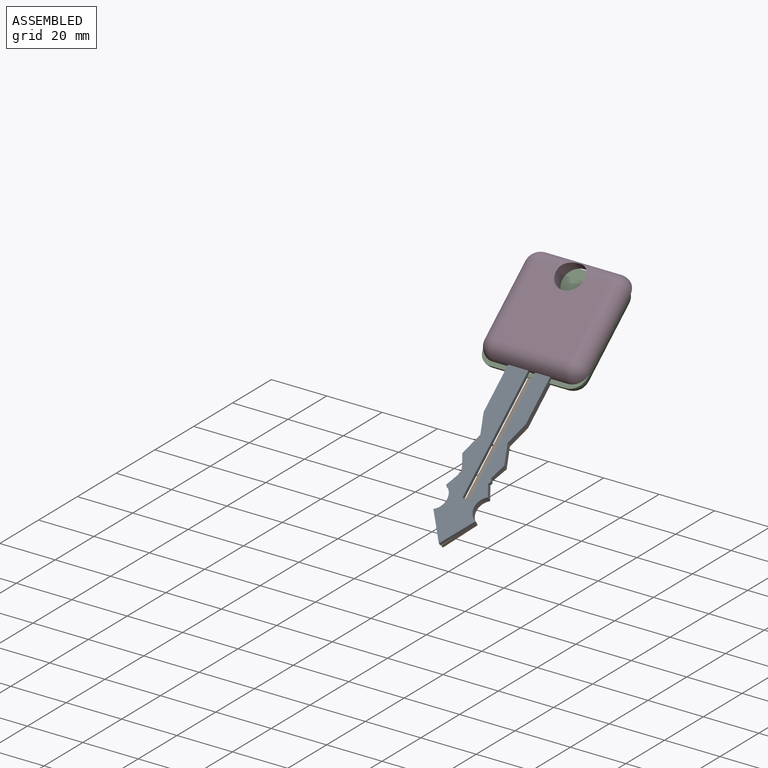
[diagram: assembled view]
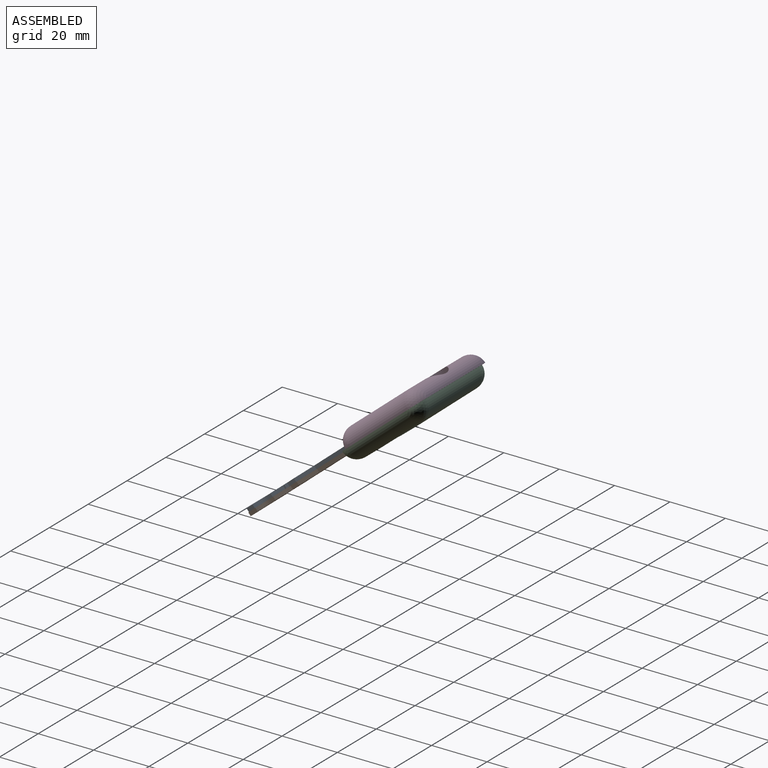
[diagram: assembled view, second angle]
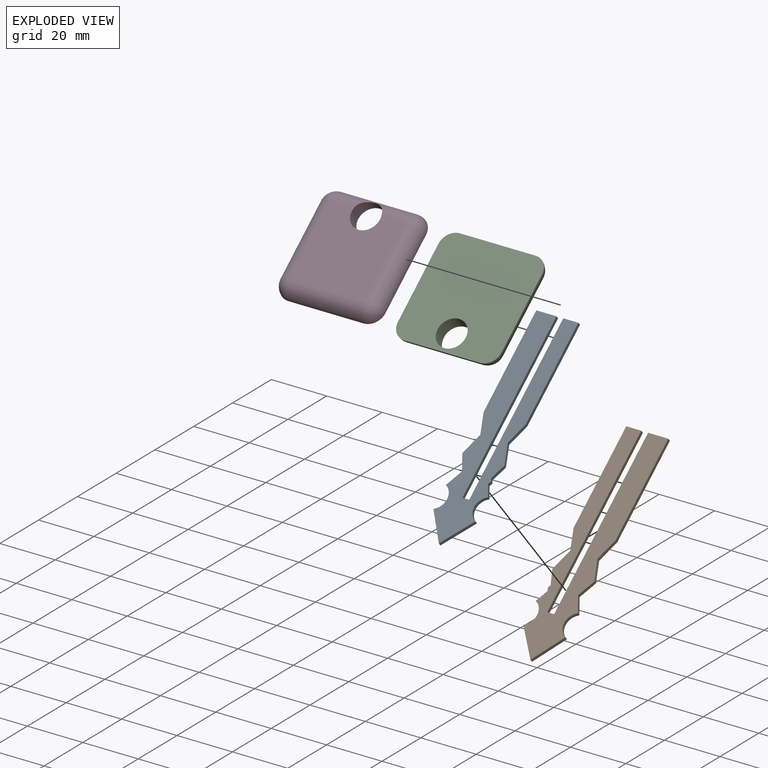
[diagram: exploded view]
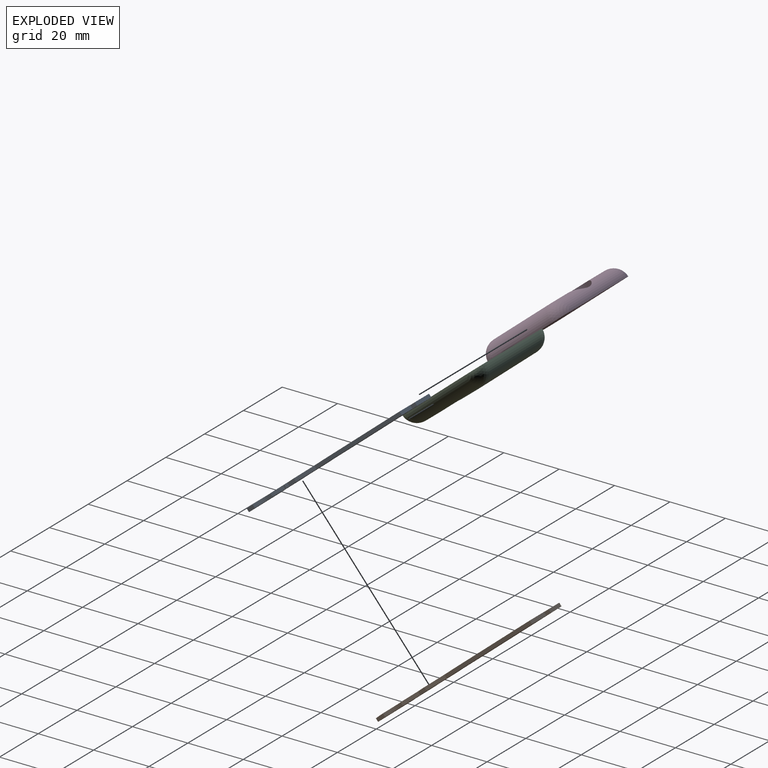
[diagram: exploded view, second angle]
ASSEMBLY  parts=4 mates=2
PART A: 23 faces, bbox 15.2x79.2x1.3 mm
  f0: cylinder r=4.56mm len=8.35mm, axis (0,0,-1), area 13.4mm2, adj f1,f18,f19,f20
  f1: plane 4.07x2.13mm, normal (-0.89,-0.46,0), area 5.8mm2, adj f0,f2,f19,f20
  f2: plane 1.27x1mm, normal (-0.89,0.46,0), area 1.4mm2, adj f1,f3,f19,f20
  f3: plane 1.27x1mm, normal (-0.89,-0.46,0), area 1.4mm2, adj f2,f4,f19,f20
  f4: plane 5.04x2.13mm, normal (-0.92,0.39,0), area 6.9mm2, adj f3,f5,f19,f20
  f5: plane 7.16x2.67mm, normal (-0.94,-0.35,0), area 9.7mm2, adj f4,f6,f19,f20
  f6: plane 7.19x2.67mm, normal (-0.94,0.35,0), area 9.7mm2, adj f5,f7,f19,f20
  f7: plane 35.45x1.27mm, normal (-1,0,0), area 45mm2, adj f6,f19,f20,f21
  f8: plane 63.3x1.27mm, normal (1,0,0), area 80.4mm2, adj f9,f19,f20,f21
  f9: plane 2.44x1.27mm, normal (0,-1,0), area 3.1mm2, adj f8,f10,f19,f20
  f10: plane 63.3x1.27mm, normal (-1,0,0), area 80.4mm2, adj f9,f19,f20,f22
  f11: plane 35.45x1.27mm, normal (1,0,0), area 45mm2, adj f12,f19,f20,f22
  f12: plane 7.19x2.67mm, normal (0.94,0.35,0), area 9.7mm2, adj f11,f13,f19,f20
  f13: plane 7.16x2.67mm, normal (0.94,-0.35,0), area 9.7mm2, adj f12,f14,f19,f20
  f14: plane 5.56x2.89mm, normal (0.89,0.46,0), area 8mm2, adj f13,f15,f19,f20
  f15: plane 5.55x2.89mm, normal (0.89,-0.46,0), area 7.9mm2, adj f14,f16,f19,f20
  f16: cylinder r=4.57mm len=8.35mm, axis (0,0,-1), area 13.4mm2, adj f15,f17,f19,f20
  f17: plane 9.95x7.3mm, normal (0.81,0.59,0), area 15.7mm2, adj f16,f18,f19,f20
  f18: plane 9.95x7.9mm, normal (-0.78,0.62,0), area 16.1mm2, adj f0,f17,f19,f20
  f19: plane 79.22x15.19mm, normal (0,0,1), area 873.2mm2, adj f0,f1,f2,f3,f4,f5,f6,f7
  f20: plane 79.22x15.19mm, normal (0,0,-1), area 873.2mm2, adj f0,f1,f2,f3,f4,f5,f6,f7
  f21: plane 5.46x1.27mm, normal (0,-1,0), area 6.9mm2, adj f7,f8,f19,f20
  f22: plane 7.3x1.27mm, normal (0,-1,0), area 9.3mm2, adj f10,f11,f19,f20
PART B: same geometry as A
PART C: 11 faces, bbox 37.4x37.4x5.1 mm
  f0: cylinder r=5.08mm len=10.16mm, axis (0,0,-1), area 151.1mm2, adj f1,f2,f6
  f1: plane 27.25x27.25mm, normal (0,0,1), area 689.3mm2, adj f0,f3,f4,f6,f9
  f2: plane 37.41x37.41mm, normal (0,0,-1), area 1296.5mm2, adj f0,f3,f4,f5,f6,f7,f8,f9
  f3: cylinder r=5.08mm len=27.25mm, axis (-1,0,0), area 217.5mm2, adj f1,f2,f5,f8
  f4: cylinder r=5.08mm len=27.25mm, axis (0,-1,0), area 217.5mm2, adj f1,f2,f5,f7
  f5: sphere r=5.08mm, area 40.5mm2, adj f2,f3,f4
  f6: cylinder r=5.08mm len=27.25mm, axis (1,0,0), area 187.4mm2, adj f0,f1,f2,f7,f10
  f7: sphere r=5.08mm, area 40.5mm2, adj f2,f4,f6
  f8: sphere r=5.08mm, area 40.5mm2, adj f2,f3,f9
  f9: cylinder r=5.08mm len=27.25mm, axis (0,1,0), area 217.5mm2, adj f1,f2,f8,f10
  f10: sphere r=5.08mm, area 40.5mm2, adj f2,f6,f9
PART D: same geometry as C
PLACE A rot(axis=(0,0.34,-0.94),180deg) t=(-41.86,-13.24,-26.45)mm
PLACE B rot(axis=(-1,0,0),140deg) t=(-41.57,-13.24,-26.45)mm
PLACE C rot(axis=(-1,0,0),140deg) t=(-15.57,39.35,18.01)mm
PLACE D rot(axis=(1,0,0),40deg) t=(-15.57,-14.44,-27.12)mm
MATE fastened D.f2 <-> C.f2  axis (0,0.64,-0.77) through (-41.57,12.46,-4.55)mm
MATE fastened A.f20 <-> B.f20  axis (0,0.64,-0.77) through (-41.72,-14.31,-27.34)mm
